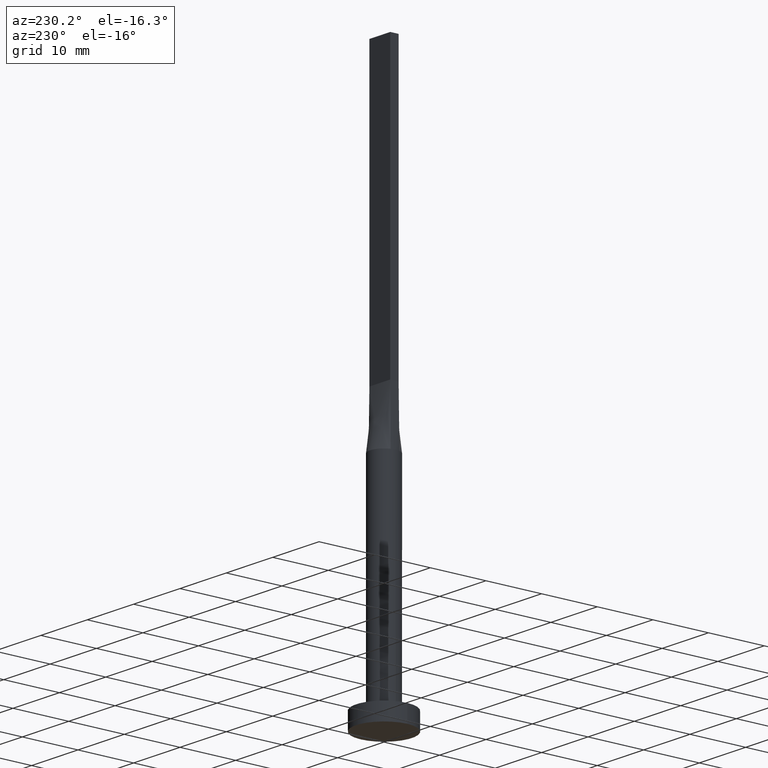
[diagram: clean part render]
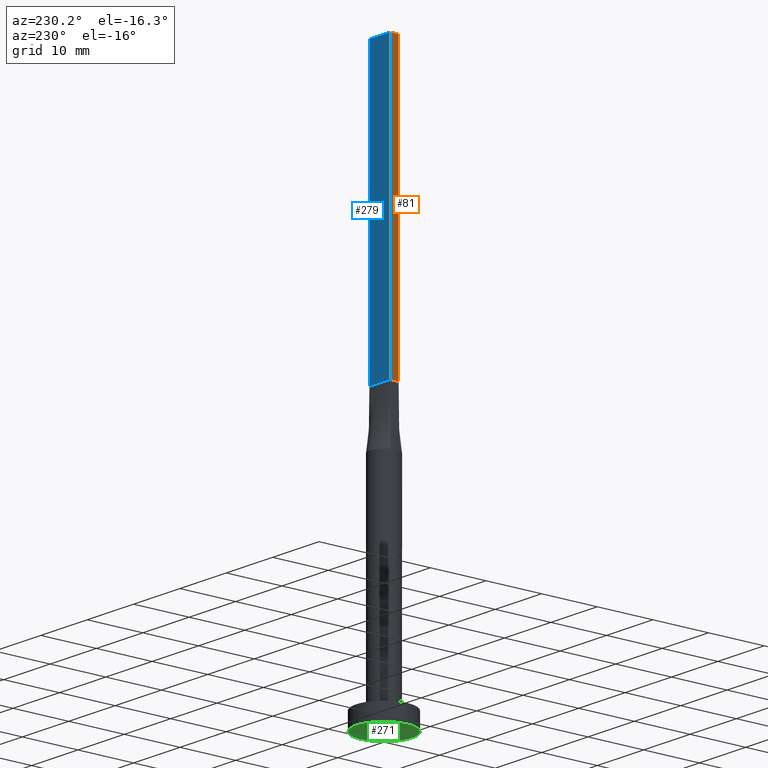
[diagram: same view with three faces highlighted in distinct colors, each labeled with its STEP entity id]
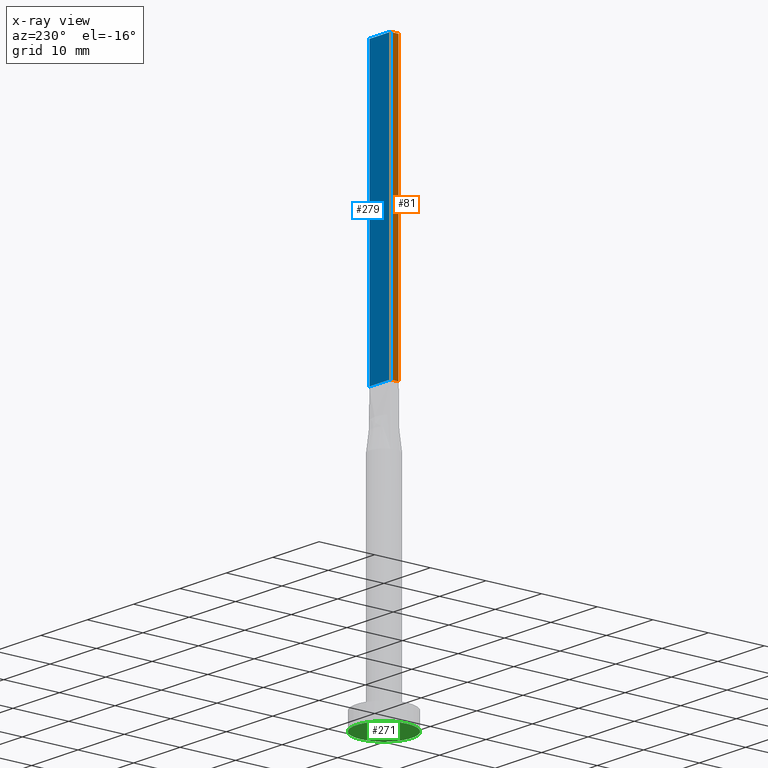
[diagram: x-ray of the same camera — body ghosted, the three highlighted faces saturated]
A machine part, auxiliary view with three faces highlighted in distinct colors.
The next image is the same camera in x-ray (body ghosted, the three faces saturated) — at least one of them is partly hidden behind the body in this view.
Their STEP definitions:

[orange] entity #81 — the highlighted planar face has unit normal (1, -0, 0).
#3 = LINE ( 'NONE', #243, #179 ) ;
#6 = ORIENTED_EDGE ( 'NONE', *, *, #453, .F. ) ;
#18 = CARTESIAN_POINT ( 'NONE',  ( -2.249999999999999556, 0.7500000000000002220, 100.0000000000000000 ) ) ;
#25 = VECTOR ( 'NONE', #93, 1000.000000000000000 ) ;
#31 = DIRECTION ( 'NONE',  ( 2.891205793294678819E-16, 1.000000000000000000, 0.000000000000000000 ) ) ;
#58 = ORIENTED_EDGE ( 'NONE', *, *, #127, .T. ) ;
#60 = AXIS2_PLACEMENT_3D ( 'NONE', #174, #473, #31 ) ;
#70 = VERTEX_POINT ( 'NONE', #119 ) ;
#74 = ORIENTED_EDGE ( 'NONE', *, *, #309, .F. ) ;
#75 = EDGE_CURVE ( 'NONE', #384, #503, #360, .T. ) ;
#81 = ADVANCED_FACE ( 'NONE', ( #429 ), #267, .F. ) ;
#82 = CARTESIAN_POINT ( 'NONE',  ( -2.249999999999999556, 0.7500000000000002220, 100.0000000000000000 ) ) ;
#93 = DIRECTION ( 'NONE',  ( -2.891205793294678819E-16, -1.000000000000000000, 0.000000000000000000 ) ) ;
#119 = CARTESIAN_POINT ( 'NONE',  ( -2.250000000000000000, -0.7499999999999995559, 100.0000000000000000 ) ) ;
#127 = EDGE_CURVE ( 'NONE', #503, #448, #188, .T. ) ;
#145 = ORIENTED_EDGE ( 'NONE', *, *, #75, .T. ) ;
#174 = CARTESIAN_POINT ( 'NONE',  ( -2.249999999999999556, 0.7500000000000002220, 100.0000000000000000 ) ) ;
#179 = VECTOR ( 'NONE', #506, 1000.000000000000000 ) ;
#188 = LINE ( 'NONE', #410, #25 ) ;
#190 = LINE ( 'NONE', #18, #494 ) ;
#243 = CARTESIAN_POINT ( 'NONE',  ( -2.250000000000000000, -0.7499999999999995559, 100.0000000000000000 ) ) ;
#252 = EDGE_LOOP ( 'NONE', ( #58, #74, #6, #145 ) ) ;
#267 = PLANE ( 'NONE',  #60 ) ;
#288 = CARTESIAN_POINT ( 'NONE',  ( -2.249999999999999556, 0.7500000000000002220, 100.0000000000000000 ) ) ;
#303 = DIRECTION ( 'NONE',  ( -0.000000000000000000, -0.000000000000000000, -1.000000000000000000 ) ) ;
#309 = EDGE_CURVE ( 'NONE', #70, #448, #3, .T. ) ;
#338 = CARTESIAN_POINT ( 'NONE',  ( -2.250000000000000000, -0.7499999999999995559, 50.00000000000000000 ) ) ;
#360 = LINE ( 'NONE', #82, #527 ) ;
#384 = VERTEX_POINT ( 'NONE', #288 ) ;
#410 = CARTESIAN_POINT ( 'NONE',  ( -2.249999999999999556, 0.7500000000000002220, 50.00000000000000000 ) ) ;
#414 = DIRECTION ( 'NONE',  ( -2.891205793294678819E-16, -1.000000000000000000, 0.000000000000000000 ) ) ;
#429 = FACE_OUTER_BOUND ( 'NONE', #252, .T. ) ;
#448 = VERTEX_POINT ( 'NONE', #338 ) ;
#453 = EDGE_CURVE ( 'NONE', #384, #70, #190, .T. ) ;
#473 = DIRECTION ( 'NONE',  ( 1.000000000000000000, -2.891205793294678819E-16, 0.000000000000000000 ) ) ;
#494 = VECTOR ( 'NONE', #414, 1000.000000000000000 ) ;
#503 = VERTEX_POINT ( 'NONE', #561 ) ;
#506 = DIRECTION ( 'NONE',  ( -0.000000000000000000, -0.000000000000000000, -1.000000000000000000 ) ) ;
#527 = VECTOR ( 'NONE', #303, 1000.000000000000000 ) ;
#561 = CARTESIAN_POINT ( 'NONE',  ( -2.249999999999999556, 0.7500000000000002220, 50.00000000000000000 ) ) ;

[blue] entity #279 — the highlighted planar face has unit normal (0, -1, 0).
#12 = VECTOR ( 'NONE', #27, 1000.000000000000000 ) ;
#15 = AXIS2_PLACEMENT_3D ( 'NONE', #446, #43, #327 ) ;
#23 = ORIENTED_EDGE ( 'NONE', *, *, #225, .T. ) ;
#27 = DIRECTION ( 'NONE',  ( -1.000000000000000000, 0.000000000000000000, 0.000000000000000000 ) ) ;
#43 = DIRECTION ( 'NONE',  ( 0.000000000000000000, -1.000000000000000000, 0.000000000000000000 ) ) ;
#46 = ORIENTED_EDGE ( 'NONE', *, *, #75, .F. ) ;
#75 = EDGE_CURVE ( 'NONE', #384, #503, #360, .T. ) ;
#82 = CARTESIAN_POINT ( 'NONE',  ( -2.249999999999999556, 0.7500000000000002220, 100.0000000000000000 ) ) ;
#96 = FACE_OUTER_BOUND ( 'NONE', #337, .T. ) ;
#98 = EDGE_CURVE ( 'NONE', #396, #384, #442, .T. ) ;
#126 = CARTESIAN_POINT ( 'NONE',  ( 2.249999999999999556, 0.7500000000000002220, 100.0000000000000000 ) ) ;
#156 = CARTESIAN_POINT ( 'NONE',  ( 2.249999999999999556, 0.7500000000000002220, 50.00000000000000000 ) ) ;
#176 = DIRECTION ( 'NONE',  ( -1.000000000000000000, -0.000000000000000000, -0.000000000000000000 ) ) ;
#194 = CARTESIAN_POINT ( 'NONE',  ( 2.249999999999999556, 0.7500000000000002220, 100.0000000000000000 ) ) ;
#199 = EDGE_CURVE ( 'NONE', #396, #346, #228, .T. ) ;
#205 = ORIENTED_EDGE ( 'NONE', *, *, #98, .F. ) ;
#225 = EDGE_CURVE ( 'NONE', #346, #503, #536, .T. ) ;
#228 = LINE ( 'NONE', #270, #493 ) ;
#270 = CARTESIAN_POINT ( 'NONE',  ( 2.249999999999999556, 0.7500000000000002220, 100.0000000000000000 ) ) ;
#279 = ADVANCED_FACE ( 'NONE', ( #96 ), #411, .F. ) ;
#288 = CARTESIAN_POINT ( 'NONE',  ( -2.249999999999999556, 0.7500000000000002220, 100.0000000000000000 ) ) ;
#303 = DIRECTION ( 'NONE',  ( -0.000000000000000000, -0.000000000000000000, -1.000000000000000000 ) ) ;
#327 = DIRECTION ( 'NONE',  ( 0.000000000000000000, -0.000000000000000000, -1.000000000000000000 ) ) ;
#337 = EDGE_LOOP ( 'NONE', ( #23, #46, #205, #556 ) ) ;
#346 = VERTEX_POINT ( 'NONE', #156 ) ;
#360 = LINE ( 'NONE', #82, #527 ) ;
#384 = VERTEX_POINT ( 'NONE', #288 ) ;
#396 = VERTEX_POINT ( 'NONE', #194 ) ;
#407 = DIRECTION ( 'NONE',  ( -0.000000000000000000, -0.000000000000000000, -1.000000000000000000 ) ) ;
#408 = VECTOR ( 'NONE', #176, 1000.000000000000000 ) ;
#411 = PLANE ( 'NONE',  #15 ) ;
#442 = LINE ( 'NONE', #126, #12 ) ;
#445 = CARTESIAN_POINT ( 'NONE',  ( -2.249999999999999556, 0.7500000000000002220, 50.00000000000000000 ) ) ;
#446 = CARTESIAN_POINT ( 'NONE',  ( 2.249999999999999556, 0.7500000000000002220, 100.0000000000000000 ) ) ;
#493 = VECTOR ( 'NONE', #407, 1000.000000000000000 ) ;
#503 = VERTEX_POINT ( 'NONE', #561 ) ;
#527 = VECTOR ( 'NONE', #303, 1000.000000000000000 ) ;
#536 = LINE ( 'NONE', #445, #408 ) ;
#556 = ORIENTED_EDGE ( 'NONE', *, *, #199, .T. ) ;
#561 = CARTESIAN_POINT ( 'NONE',  ( -2.249999999999999556, 0.7500000000000002220, 50.00000000000000000 ) ) ;

[green] entity #271 — the highlighted planar face has unit normal (0, 0, 1).
#10 = VERTEX_POINT ( 'NONE', #525 ) ;
#26 = DIRECTION ( 'NONE',  ( 1.000000000000000000, 0.000000000000000000, 0.000000000000000000 ) ) ;
#45 = CARTESIAN_POINT ( 'NONE',  ( 0.000000000000000000, 0.000000000000000000, 0.000000000000000000 ) ) ;
#86 = DIRECTION ( 'NONE',  ( 1.000000000000000000, 0.000000000000000000, 0.000000000000000000 ) ) ;
#92 = AXIS2_PLACEMENT_3D ( 'NONE', #100, #456, #26 ) ;
#100 = CARTESIAN_POINT ( 'NONE',  ( 0.000000000000000000, 0.000000000000000000, 0.000000000000000000 ) ) ;
#197 = CIRCLE ( 'NONE', #246, 5.000000000000000000 ) ;
#208 = ORIENTED_EDGE ( 'NONE', *, *, #242, .F. ) ;
#242 = EDGE_CURVE ( 'NONE', #10, #550, #197, .T. ) ;
#246 = AXIS2_PLACEMENT_3D ( 'NONE', #365, #488, #86 ) ;
#271 = ADVANCED_FACE ( 'NONE', ( #450 ), #370, .F. ) ;
#295 = AXIS2_PLACEMENT_3D ( 'NONE', #45, #534, #412 ) ;
#365 = CARTESIAN_POINT ( 'NONE',  ( 0.000000000000000000, 0.000000000000000000, 0.000000000000000000 ) ) ;
#370 = PLANE ( 'NONE',  #295 ) ;
#412 = DIRECTION ( 'NONE',  ( 1.000000000000000000, 0.000000000000000000, -0.000000000000000000 ) ) ;
#418 = CARTESIAN_POINT ( 'NONE',  ( -5.000000000000000000, 0.000000000000000000, 0.000000000000000000 ) ) ;
#420 = ORIENTED_EDGE ( 'NONE', *, *, #480, .F. ) ;
#427 = EDGE_LOOP ( 'NONE', ( #420, #208 ) ) ;
#450 = FACE_OUTER_BOUND ( 'NONE', #427, .T. ) ;
#456 = DIRECTION ( 'NONE',  ( 0.000000000000000000, 0.000000000000000000, 1.000000000000000000 ) ) ;
#480 = EDGE_CURVE ( 'NONE', #550, #10, #546, .T. ) ;
#488 = DIRECTION ( 'NONE',  ( 0.000000000000000000, 0.000000000000000000, 1.000000000000000000 ) ) ;
#525 = CARTESIAN_POINT ( 'NONE',  ( 5.000000000000000000, 6.123233995736766282E-16, 0.000000000000000000 ) ) ;
#534 = DIRECTION ( 'NONE',  ( 0.000000000000000000, 0.000000000000000000, 1.000000000000000000 ) ) ;
#546 = CIRCLE ( 'NONE', #92, 5.000000000000000000 ) ;
#550 = VERTEX_POINT ( 'NONE', #418 ) ;